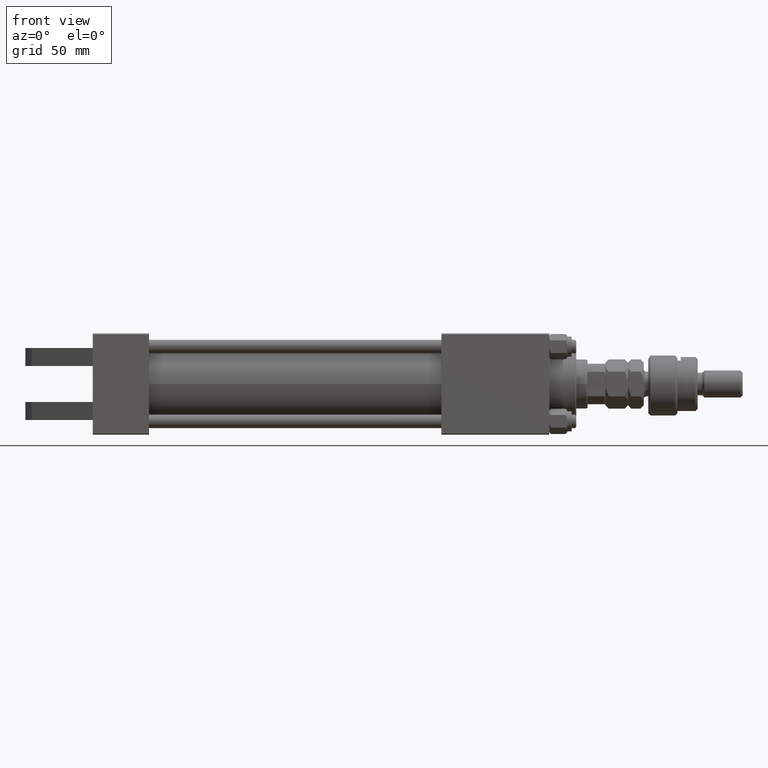
[diagram: clean part render]
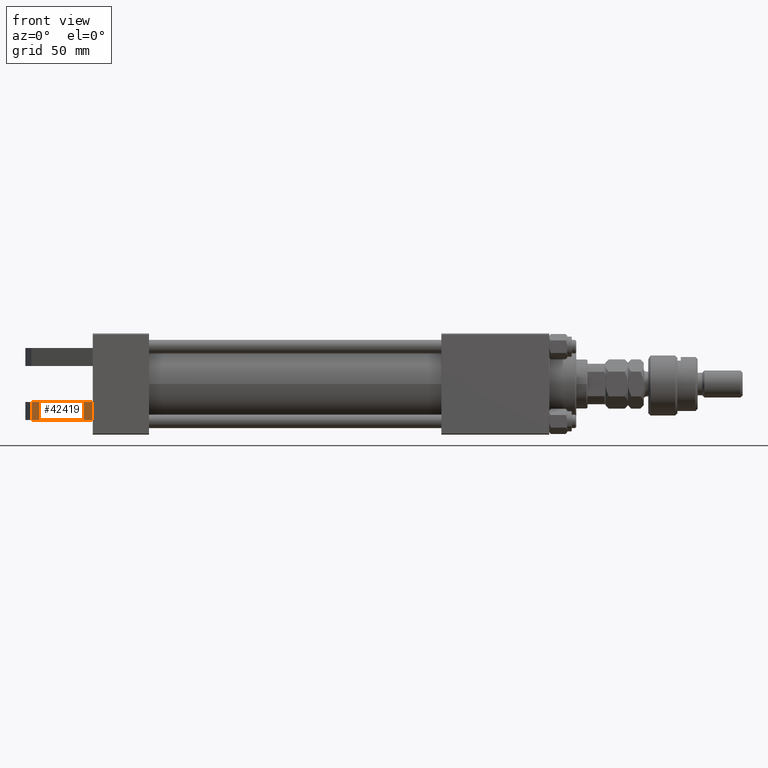
[diagram: same view with one face highlighted and labeled with its STEP entity id]
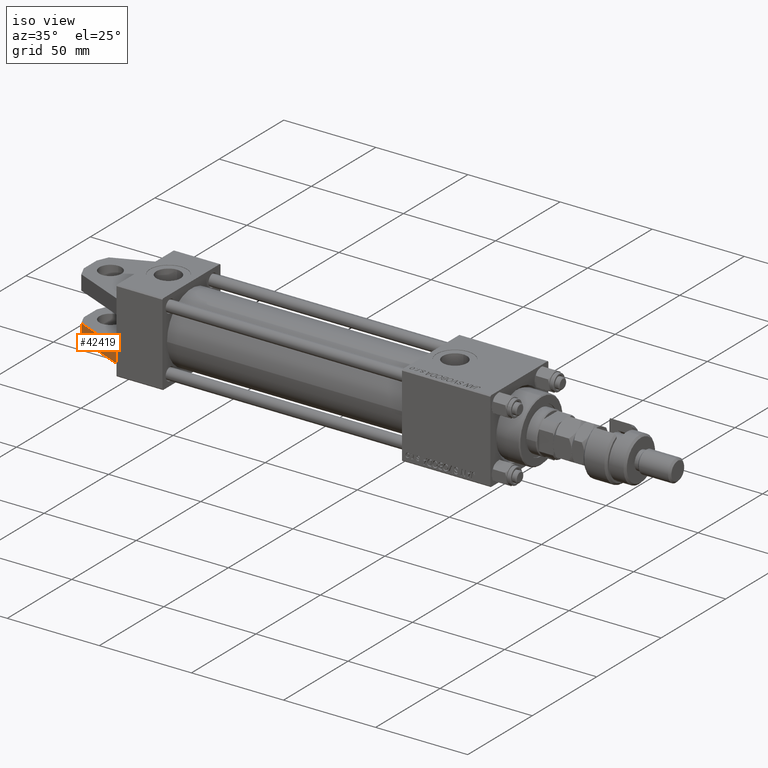
[diagram: same view with one face highlighted and labeled with its STEP entity id]
A machine part, front view. The second image highlights one B-rep face of the part: STEP entity #42419.
A second angle (iso view) of the same face is appended — the face is thin or edge-on in the first view.
In plain terms, the highlighted planar face has unit normal (0.395, 0.9187, 0).
Its self-contained STEP definition (entity closure, byte-faithful):
#2781 = EDGE_CURVE ( 'NONE', #48120, #28928, #27342, .T. ) ;
#6178 = CARTESIAN_POINT ( 'NONE',  ( 0.000000000000000000, 16.00000000000000000, -22.50000000000000711 ) ) ;
#6179 = CARTESIAN_POINT ( 'NONE',  ( -27.31637403794659136, 16.00000000000000000, -10.75505444768274543 ) ) ;
#6708 = ORIENTED_EDGE ( 'NONE', *, *, #25734, .F. ) ;
#7283 = VECTOR ( 'NONE', #14419, 1000.000000000000000 ) ;
#10129 = EDGE_LOOP ( 'NONE', ( #25829, #17228, #6708, #15349 ) ) ;
#10666 = VECTOR ( 'NONE', #39569, 1000.000000000000000 ) ;
#13345 = DIRECTION ( 'NONE',  ( 0.3949966628141013958, -0.000000000000000000, 0.9186825547302632788 ) ) ;
#14083 = LINE ( 'NONE', #39052, #48939 ) ;
#14419 = DIRECTION ( 'NONE',  ( -0.000000000000000000, -1.000000000000000000, -0.000000000000000000 ) ) ;
#15349 = ORIENTED_EDGE ( 'NONE', *, *, #17368, .T. ) ;
#17228 = ORIENTED_EDGE ( 'NONE', *, *, #2781, .F. ) ;
#17368 = EDGE_CURVE ( 'NONE', #33674, #30237, #45763, .T. ) ;
#17719 = LINE ( 'NONE', #21421, #45684 ) ;
#20310 = EDGE_CURVE ( 'NONE', #30237, #28928, #14083, .T. ) ;
#21421 = CARTESIAN_POINT ( 'NONE',  ( -27.31637403794659136, 16.00000000000000000, -10.75505444768274543 ) ) ;
#21837 = DIRECTION ( 'NONE',  ( 0.9186825547302631678, 0.000000000000000000, -0.3949966628141013403 ) ) ;
#25133 = CARTESIAN_POINT ( 'NONE',  ( -27.31637403794659136, 16.00000000000000000, -10.75505444768274543 ) ) ;
#25734 = EDGE_CURVE ( 'NONE', #33674, #48120, #17719, .T. ) ;
#25829 = ORIENTED_EDGE ( 'NONE', *, *, #20310, .T. ) ;
#27342 = LINE ( 'NONE', #52035, #10666 ) ;
#28303 = AXIS2_PLACEMENT_3D ( 'NONE', #6179, #13345, #21837 ) ;
#28928 = VERTEX_POINT ( 'NONE', #46675 ) ;
#30237 = VERTEX_POINT ( 'NONE', #37604 ) ;
#33674 = VERTEX_POINT ( 'NONE', #47446 ) ;
#37604 = CARTESIAN_POINT ( 'NONE',  ( 0.000000000000000000, 8.000000000000003553, -22.50000000000000000 ) ) ;
#39052 = CARTESIAN_POINT ( 'NONE',  ( -27.31637403794659136, 8.000000000000000000, -10.75505444768274543 ) ) ;
#39569 = DIRECTION ( 'NONE',  ( -0.000000000000000000, -1.000000000000000000, -0.000000000000000000 ) ) ;
#42419 = ADVANCED_FACE ( 'NONE', ( #49729 ), #50800, .F. ) ;
#45684 = VECTOR ( 'NONE', #50120, 1000.000000000000227 ) ;
#45763 = LINE ( 'NONE', #6178, #7283 ) ;
#46492 = DIRECTION ( 'NONE',  ( -0.9186825547302631678, -0.000000000000000000, 0.3949966628141013958 ) ) ;
#46675 = CARTESIAN_POINT ( 'NONE',  ( -27.31637403794659136, 8.000000000000000000, -10.75505444768274543 ) ) ;
#47446 = CARTESIAN_POINT ( 'NONE',  ( 0.000000000000000000, 16.00000000000000000, -22.50000000000000711 ) ) ;
#48120 = VERTEX_POINT ( 'NONE', #25133 ) ;
#48939 = VECTOR ( 'NONE', #46492, 1000.000000000000227 ) ;
#49729 = FACE_OUTER_BOUND ( 'NONE', #10129, .T. ) ;
#50120 = DIRECTION ( 'NONE',  ( -0.9186825547302631678, -0.000000000000000000, 0.3949966628141013958 ) ) ;
#50800 = PLANE ( 'NONE',  #28303 ) ;
#52035 = CARTESIAN_POINT ( 'NONE',  ( -27.31637403794659136, 16.00000000000000000, -10.75505444768274543 ) ) ;